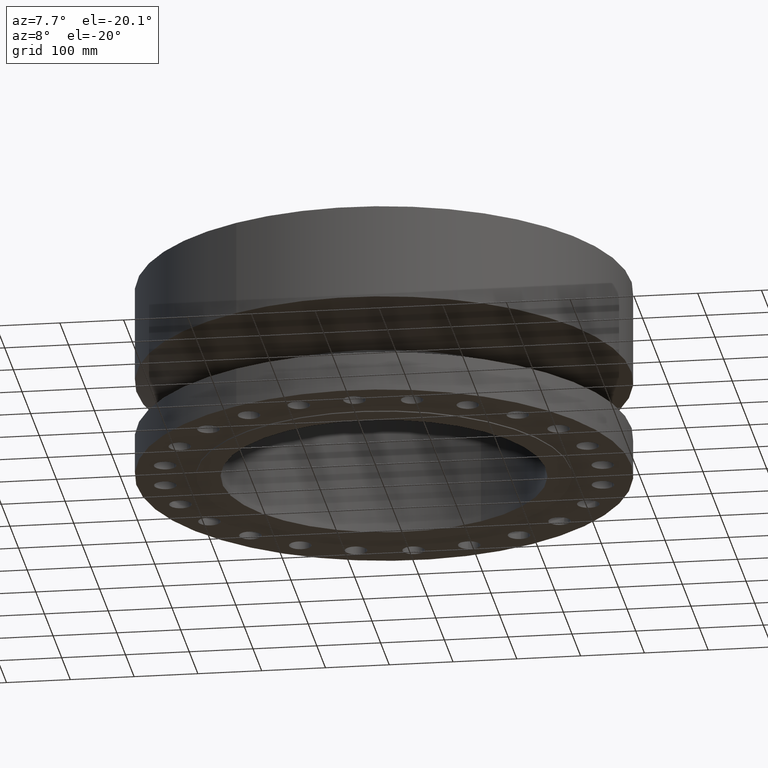
[diagram: clean part render]
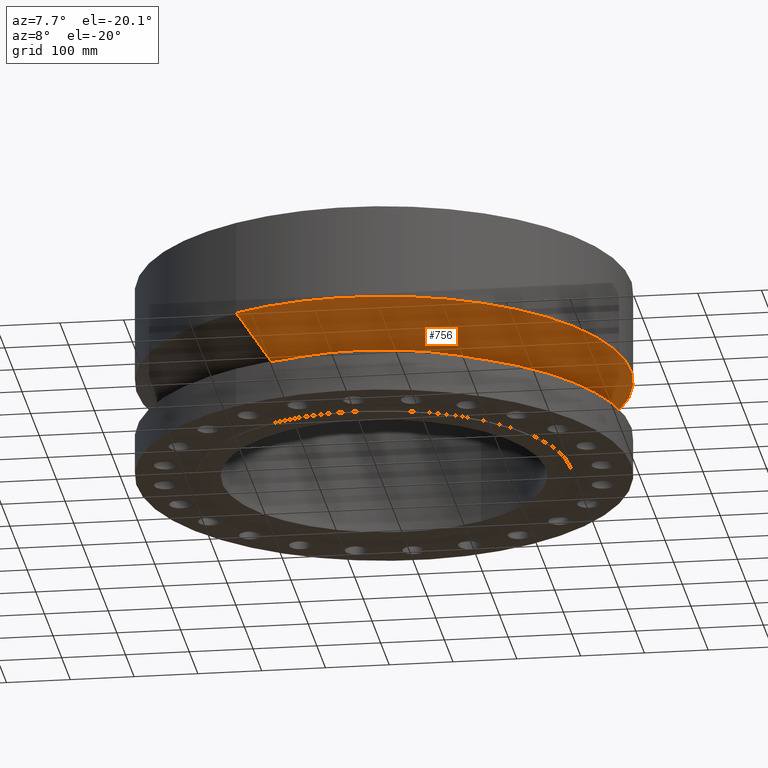
[diagram: same view with one face highlighted and labeled with its STEP entity id]
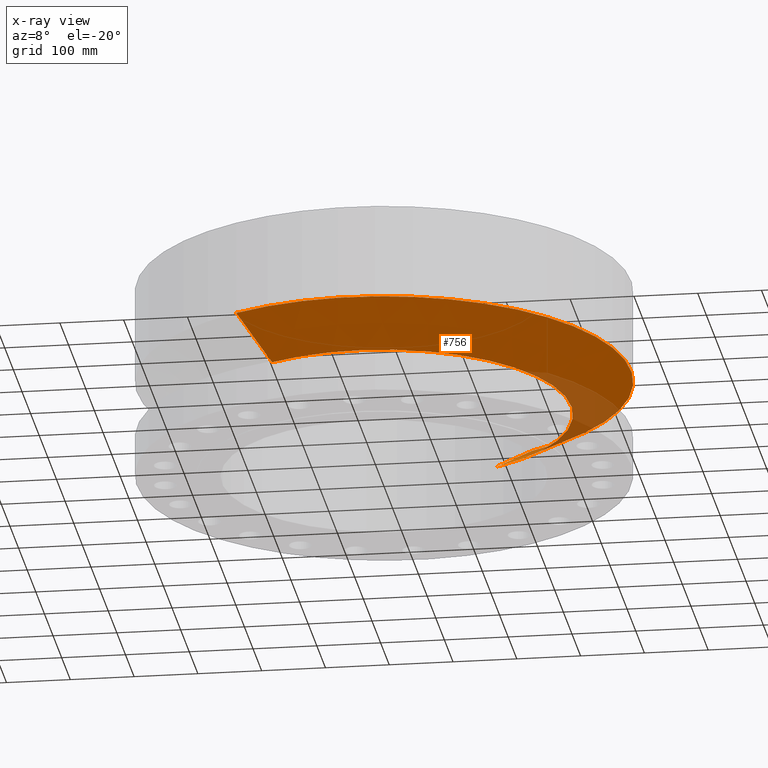
[diagram: x-ray of the same camera — body ghosted, the highlighted face saturated]
A machine part, auxiliary view. The second image highlights one B-rep face of the part: STEP entity #756.
The next image is the same camera in x-ray: the body ghosted, the highlighted face saturated — about 10% of this face is hidden behind the body in this view.
In plain terms, the highlighted conical surface has half-angle 60 deg.
Its self-contained STEP definition (entity closure, byte-faithful):
#697=AXIS2_PLACEMENT_3D('Circle Axis2P3D',#695,#696,$) ;
#729=AXIS2_PLACEMENT_3D('Cone Axis2P3D',#726,#727,#728) ;
#740=AXIS2_PLACEMENT_3D('Circle Axis2P3D',#738,#739,$) ;
#692=CARTESIAN_POINT('Vertex',(5.54215922629,10.1448544155,3.93750000002)) ;
#695=CARTESIAN_POINT('Axis2P3D Location',(0.,0.,3.93750000002)) ;
#699=CARTESIAN_POINT('Vertex',(-5.54215922629,-10.1448544155,3.93750000002)) ;
#726=CARTESIAN_POINT('Axis2P3D Location',(0.,0.,3.93750000002)) ;
#731=CARTESIAN_POINT('Line Origine',(6.42669934502,11.7639942422,5.00271124667)) ;
#735=CARTESIAN_POINT('Vertex',(7.31123946374,13.3831340689,6.06792249333)) ;
#738=CARTESIAN_POINT('Axis2P3D Location',(0.,0.,6.06792249333)) ;
#742=CARTESIAN_POINT('Vertex',(-7.31123946374,-13.3831340689,6.06792249333)) ;
#745=CARTESIAN_POINT('Line Origine',(-6.42669934502,-11.7639942422,5.00271124667)) ;
#696=DIRECTION('Axis2P3D Direction',(0.,0.,-0.0393700787402)) ;
#727=DIRECTION('Axis2P3D Direction',(-0.,-0.,0.0393700787402)) ;
#728=DIRECTION('Axis2P3D XDirection',(0.0188750212049,0.0345504945626,0.)) ;
#732=DIRECTION('Vector Direction',(0.0163462478604,0.0299216060045,0.0196850393701)) ;
#739=DIRECTION('Axis2P3D Direction',(-0.,0.,0.0393700787402)) ;
#746=DIRECTION('Vector Direction',(-0.0163462478604,-0.0299216060045,0.0196850393701)) ;
#733=VECTOR('Line Direction',#732,0.0393700787402) ;
#747=VECTOR('Line Direction',#746,0.0393700787402) ;
#751=ORIENTED_EDGE('',*,*,#701,.F.) ;
#752=ORIENTED_EDGE('',*,*,#737,.T.) ;
#753=ORIENTED_EDGE('',*,*,#744,.T.) ;
#754=ORIENTED_EDGE('',*,*,#749,.F.) ;
#756=ADVANCED_FACE('PartBody',(#755),#730,.T.) ;
#698=CIRCLE('generated circle',#697,11.56) ;
#741=CIRCLE('generated circle',#740,15.2500000001) ;
#730=CONICAL_SURFACE('Cone',#729,11.56,1.0471975512) ;
#701=EDGE_CURVE('',#693,#700,#698,.T.) ;
#737=EDGE_CURVE('',#693,#736,#734,.T.) ;
#744=EDGE_CURVE('',#736,#743,#741,.F.) ;
#749=EDGE_CURVE('',#700,#743,#748,.T.) ;
#750=EDGE_LOOP('',(#751,#752,#753,#754)) ;
#755=FACE_OUTER_BOUND('',#750,.T.) ;
#734=LINE('Line',#731,#733) ;
#748=LINE('Line',#745,#747) ;
#693=VERTEX_POINT('',#692) ;
#700=VERTEX_POINT('',#699) ;
#736=VERTEX_POINT('',#735) ;
#743=VERTEX_POINT('',#742) ;